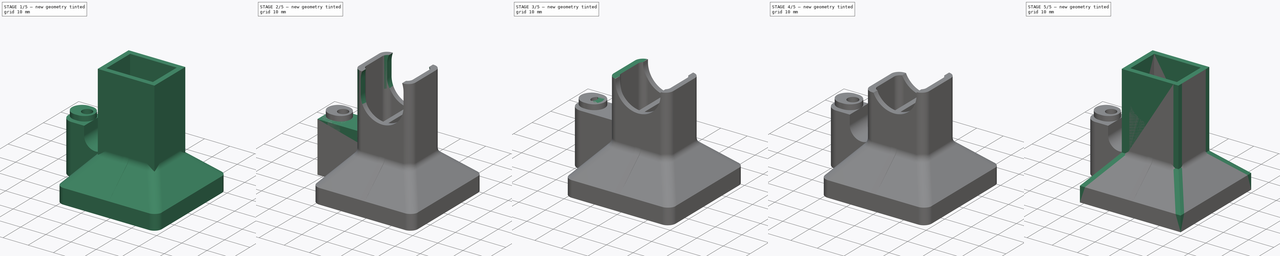
[diagram: build sequence overview — one tinted view per stage of 5, left to right]
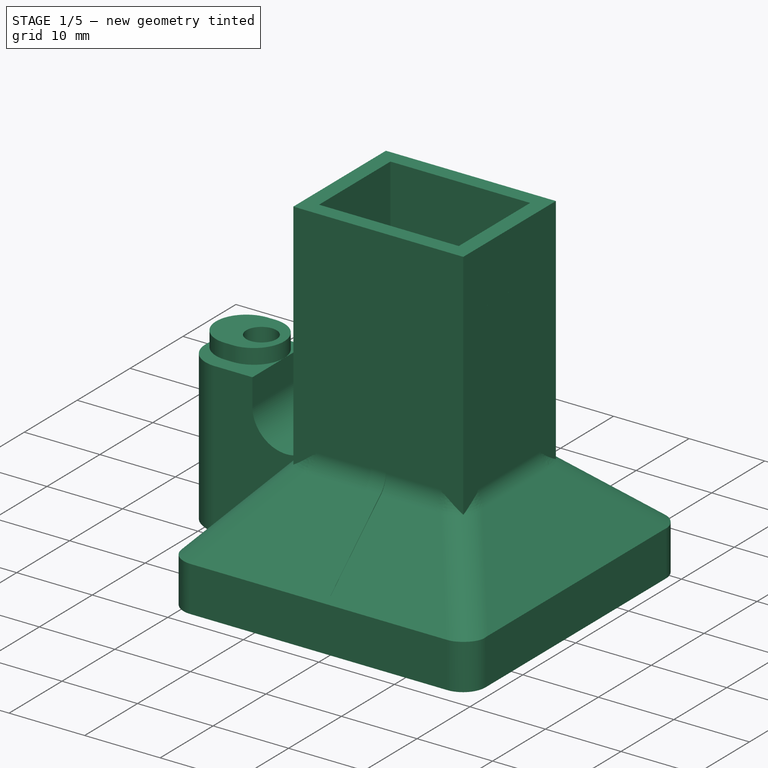
[diagram: stage 1 of 5 — iso view after this stage's code; geometry added in this stage tinted green]
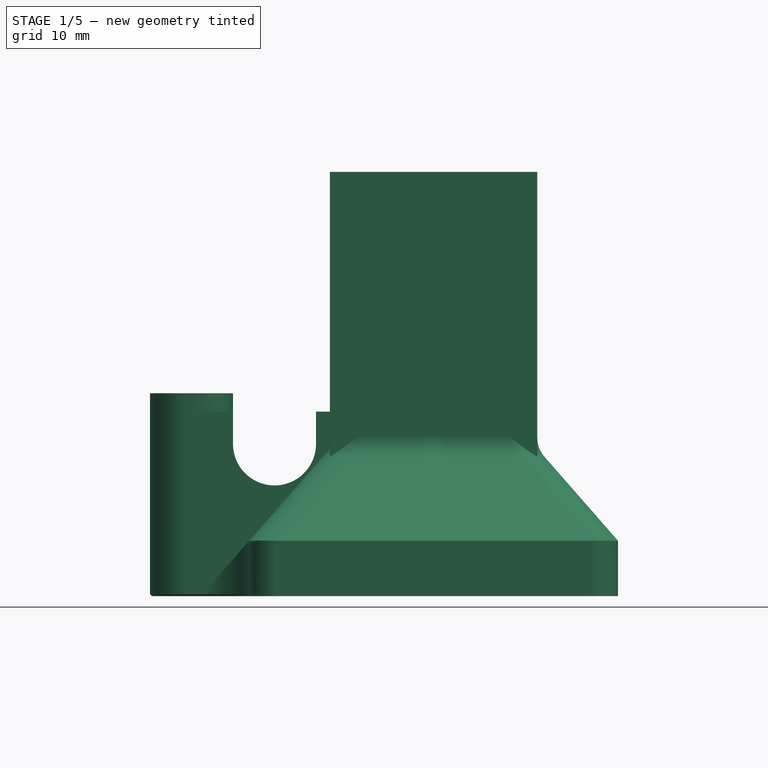
[diagram: stage 1 of 5 — front view after this stage's code; geometry added in this stage tinted green]
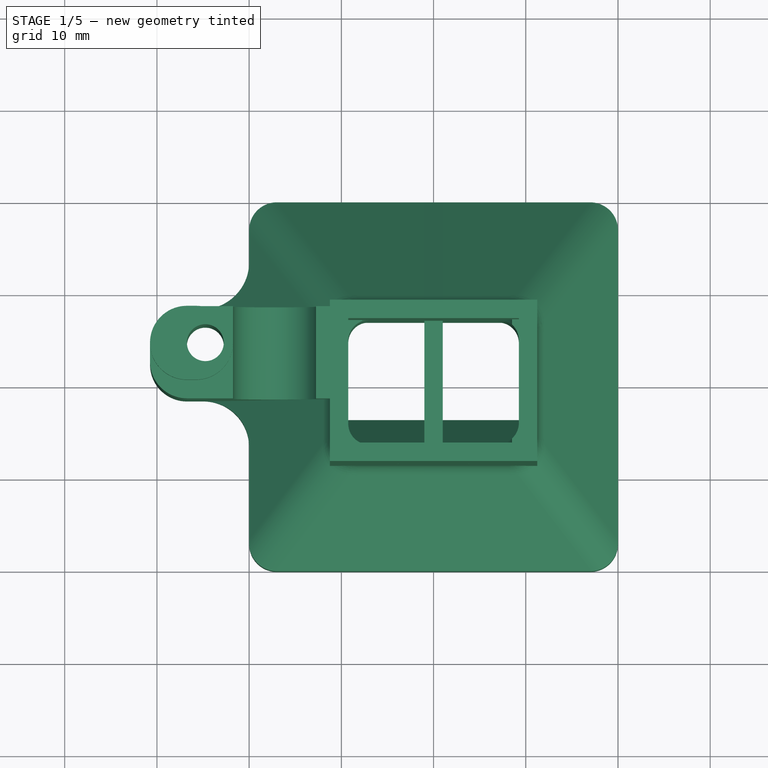
[diagram: stage 1 of 5 — top view after this stage's code; geometry added in this stage tinted green]
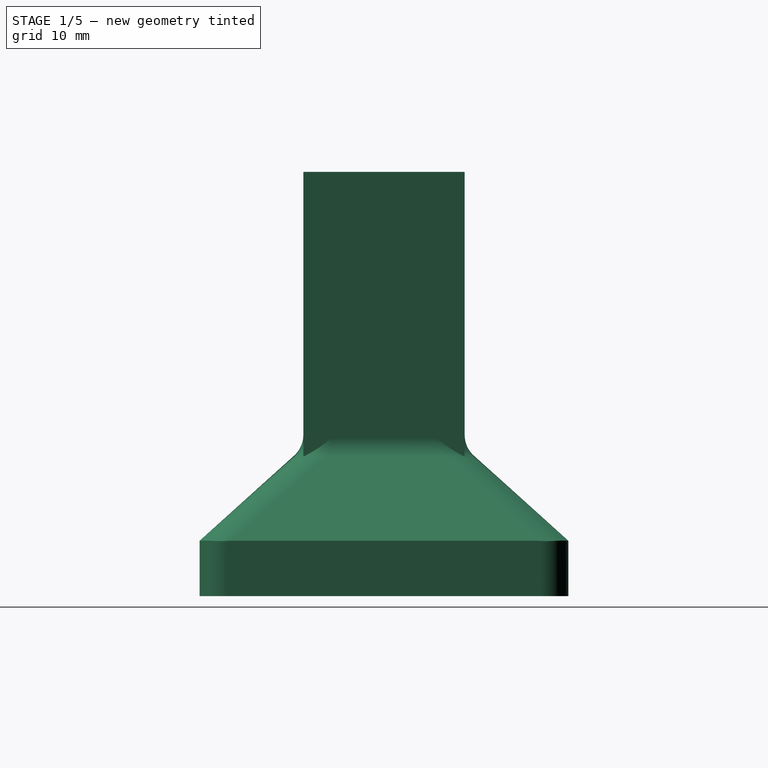
[diagram: stage 1 of 5 — right view after this stage's code; geometry added in this stage tinted green]
FCSTD DOCUMENT  (FreeCAD 0.16R5861 (Git))
Label: heatsink_fan_v0.6
License: All rights reserved
LicenseURL: http://en.wikipedia.org/wiki/All_rights_reserved
objects: Sketcher::SketchObject×19, PartDesign::Pocket×11, PartDesign::Fillet×10, PartDesign::Pad×8, PartDesign::Chamfer×5, Part::Feature×2
note: 74 computed .brp shape members not serialized (recipe doc carries the construction recipe); baked Part::Feature solids carry a one-line shape summary decoded from their .brp

FEATURE [Part::Feature] Pocket001001  label="Pocket002"
  shape: bbox 40 x 40 x 46 mm, 31 faces (baked)
FEATURE [PartDesign::Fillet] Fillet
  Base = -> Pocket001001 [Edge11,Edge10,Edge13,Edge15]
  Radius = 3
FEATURE [PartDesign::Fillet] Fillet001
  Base = -> Fillet [Edge52,Edge49,Edge47,Edge50]
  Radius = 4.5
FEATURE [Part::Feature] Pocket001010001  label="Pocket001011"
  shape: bbox 51.37 x 40.68 x 38.5 mm, 147 faces (baked)
FEATURE [PartDesign::Chamfer] Chamfer002
  Base = -> Pocket001010001 [Edge216,Edge194,Edge1,Edge327]
  Size = 0.5
FEATURE [PartDesign::Chamfer] Chamfer003
  Base = -> Chamfer002 [Edge41]
  Size = 0.5
FEATURE [PartDesign::Fillet] Fillet008
  Base = -> Chamfer003 [Edge143,Edge98,Edge101,Edge130]
  Radius = 4
FEATURE [PartDesign::Fillet] Fillet009
  Base = -> Fillet008 [Edge92,Edge71]
  Radius = 5
FEATURE [PartDesign::Chamfer] Chamfer004
  Base = -> Fillet009 [Edge7]
  Size = 0.2
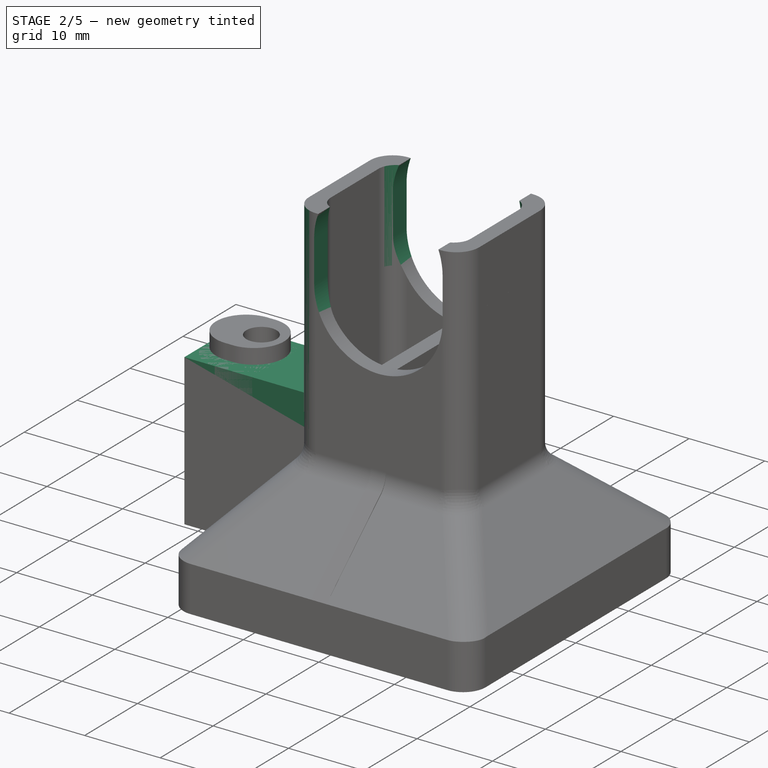
[diagram: stage 2 of 5 — iso view after this stage's code; geometry added in this stage tinted green]
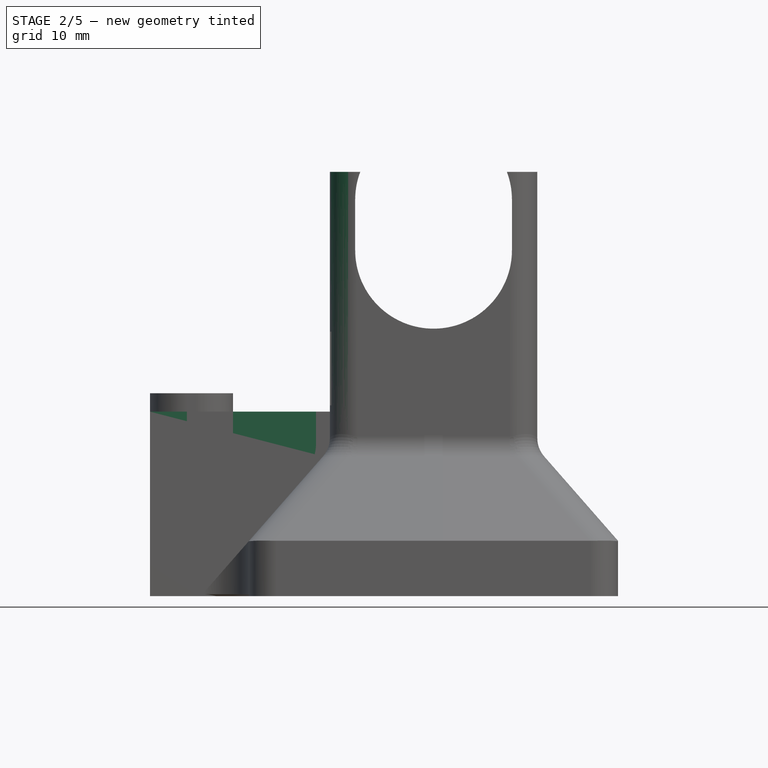
[diagram: stage 2 of 5 — front view after this stage's code; geometry added in this stage tinted green]
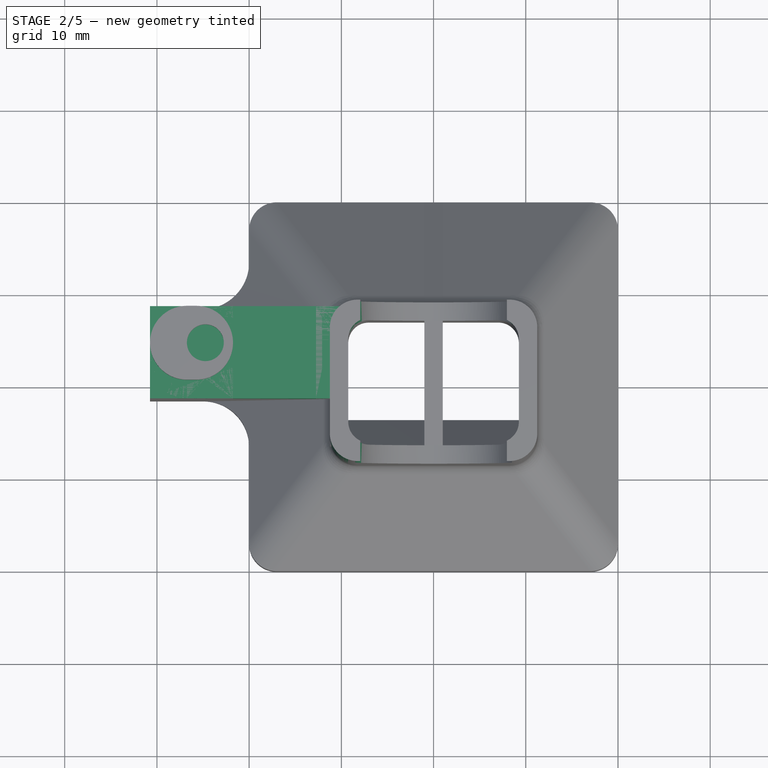
[diagram: stage 2 of 5 — top view after this stage's code; geometry added in this stage tinted green]
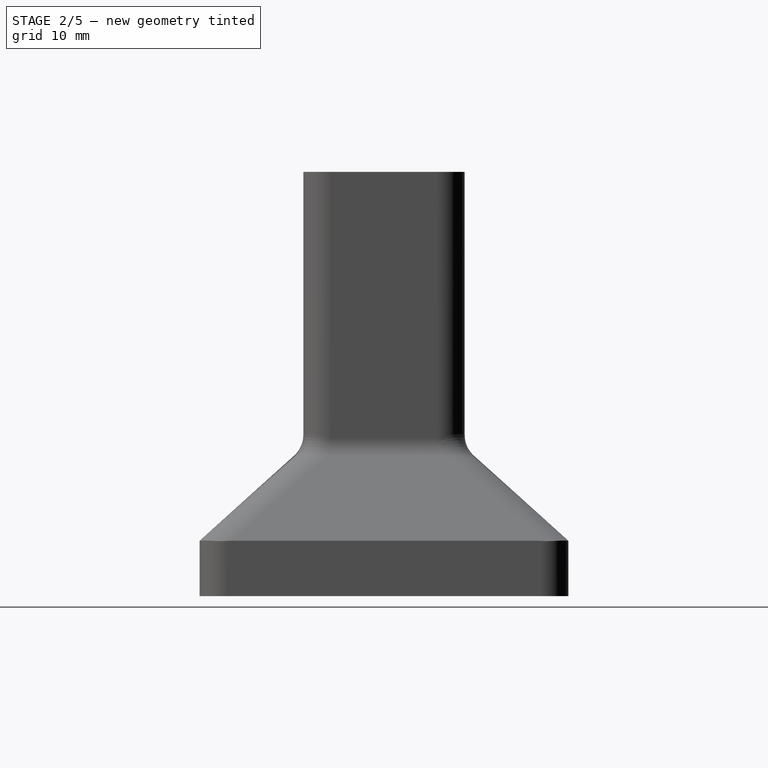
[diagram: stage 2 of 5 — right view after this stage's code; geometry added in this stage tinted green]
FEATURE [PartDesign::Fillet] Fillet002
  Base = -> Fillet001 [Edge70,Edge39,Edge40,Edge37]
  Radius = 3
FEATURE [PartDesign::Fillet] Fillet003
  Base = -> Fillet002 [Edge110,Edge103,Edge107,Edge104]
  Radius = 3
FEATURE [PartDesign::Fillet] Fillet004
  Base = -> Fillet003 [Edge5,Edge30,Edge10,Edge1]
  Radius = 2.25
FEATURE [PartDesign::Fillet] Fillet005
  Base = -> Fillet004 [Edge4]
  Radius = 4
FEATURE [Sketcher::SketchObject] Sketch005
  ExternalGeometry = -> [Fillet005]
  Support = -> Fillet005 [Face16]
  sketch-geometry (6):
    g0: ArcOfCircle CenterX=20 CenterY=43 CenterZ=0 NormalX=0 NormalY=0 NormalZ=1 Radius=8.5 StartAngle=0 EndAngle=3.14159
    g1: ArcOfCircle CenterX=20 CenterY=37.5 CenterZ=0 NormalX=0 NormalY=0 NormalZ=1 Radius=8.5 StartAngle=3.14159 EndAngle=6.28319
    g2: LineSegment StartX=11.5 StartY=43 StartZ=0 EndX=11.5 EndY=37.5 EndZ=0
    g3: LineSegment StartX=28.5 StartY=43 StartZ=0 EndX=28.5 EndY=37.5 EndZ=0
    g4: LineSegment [constr] StartX=11.75 StartY=46 StartZ=0 EndX=20 EndY=43 EndZ=0
    g5: LineSegment [constr] StartX=20 StartY=43 StartZ=0 EndX=28.25 EndY=46 EndZ=0
  constraints (14):
    c: Tangent(g0,g3) = 1.5708
    c: Tangent(g0,g2) = -1.5708
    c: Tangent(g2,g1) = -1.5708
    c: Tangent(g3,g1) = 1.5708
    c: Vertical(g2)
    c: Equal(g0,g1)
    c: Coincident(g-3,g4)
    c: Coincident(g4,g0)
    c: Coincident(g4,g5)
    c: Coincident(g5,g-3)
    c: Equal(g4,g5)
    c: DistanceX(g0,g0) = -17
    c: DistanceY(g1,g5) = 8.5
    c: DistanceY(g0,g4) = 3
FEATURE [PartDesign::Pocket] Pocket001002
  Length = 5
  Sketch = -> Sketch005
  Type = 1
FEATURE [PartDesign::Fillet] Fillet006
  Base = -> Pocket001002 [Edge88]
  Radius = 3
FEATURE [Sketcher::SketchObject] Sketch006
  ExternalGeometry = -> [Fillet006]
  Support = -> Fillet006 [Face45]
  sketch-geometry (4):
    g0: LineSegment StartX=-28.5 StartY=0 StartZ=0 EndX=-18.5 EndY=0 EndZ=0
    g1: LineSegment StartX=-18.5 StartY=0 StartZ=0 EndX=-18.5 EndY=20 EndZ=0
    g2: LineSegment StartX=-18.5 StartY=20 StartZ=0 EndX=-28.5 EndY=20 EndZ=0
    g3: LineSegment StartX=-28.5 StartY=20 StartZ=0 EndX=-28.5 EndY=0 EndZ=0
  constraints (12):
    c: Coincident(g0,g1)
    c: Coincident(g1,g2)
    c: Coincident(g2,g3)
    c: Coincident(g3,g0)
    c: Horizontal(g0)
    c: Horizontal(g2)
    c: Vertical(g1)
    c: Vertical(g3)
    c: PointOnObject(g0,g-1)
    c: DistanceX(g2) = -10
    c: DistanceY(g3) = -20
    c: DistanceX(g-1,g0) = -18.5
FEATURE [PartDesign::Pad] Pad003
  Length = 10.75
  Length2 = 10.75
  Reversed = true
  Sketch = -> Sketch006
  Type = 4
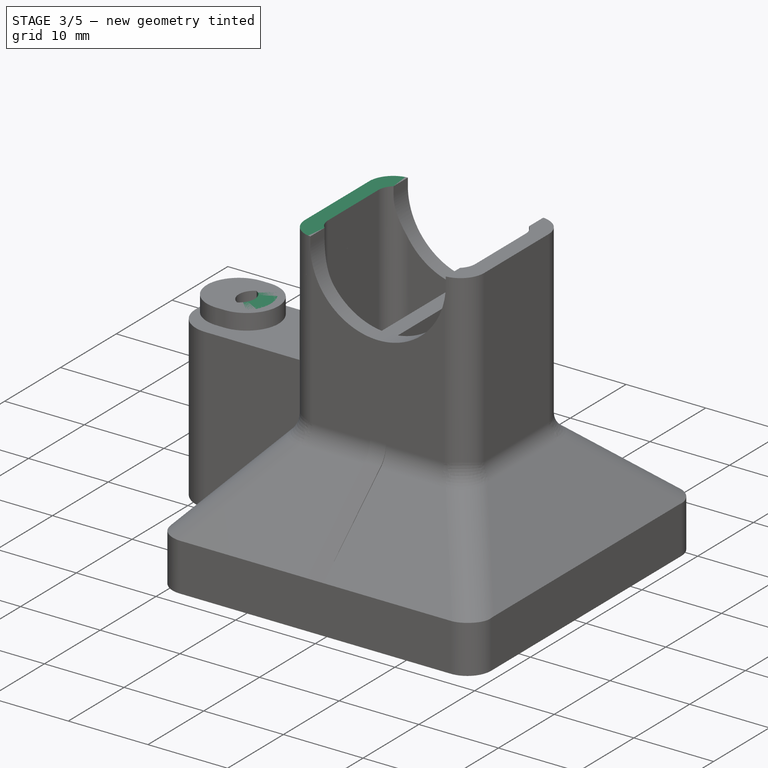
[diagram: stage 3 of 5 — iso view after this stage's code; geometry added in this stage tinted green]
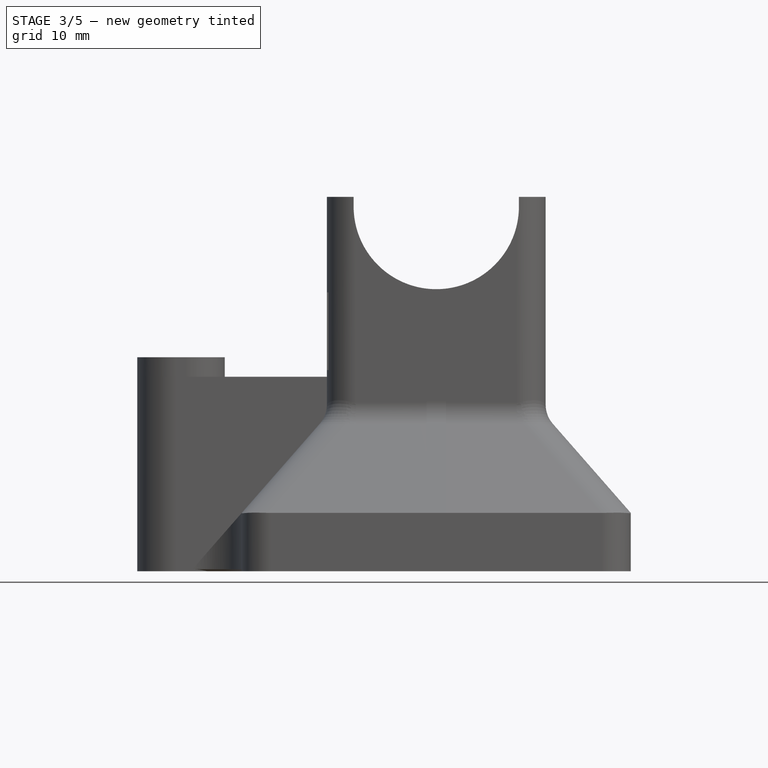
[diagram: stage 3 of 5 — front view after this stage's code; geometry added in this stage tinted green]
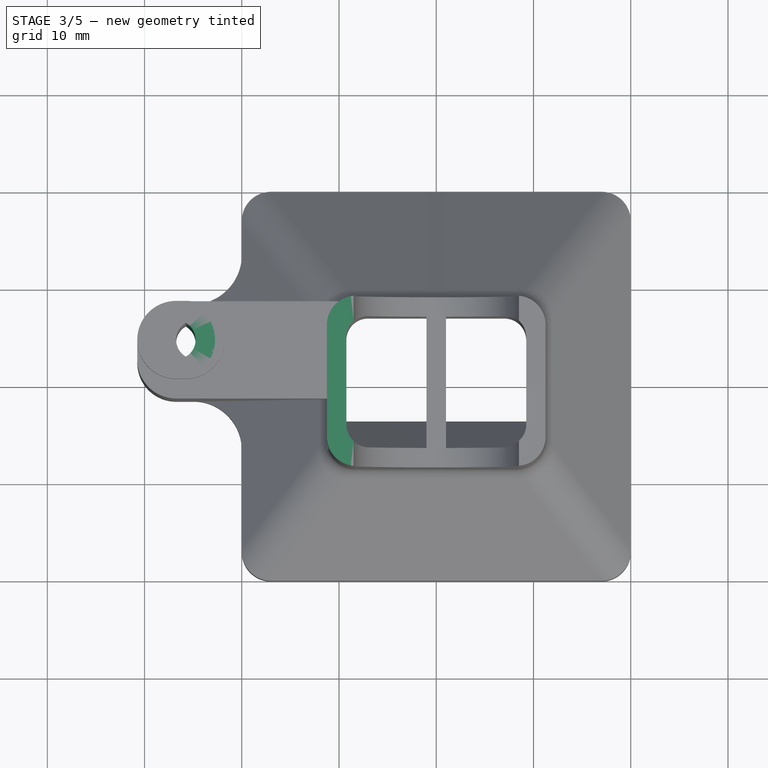
[diagram: stage 3 of 5 — top view after this stage's code; geometry added in this stage tinted green]
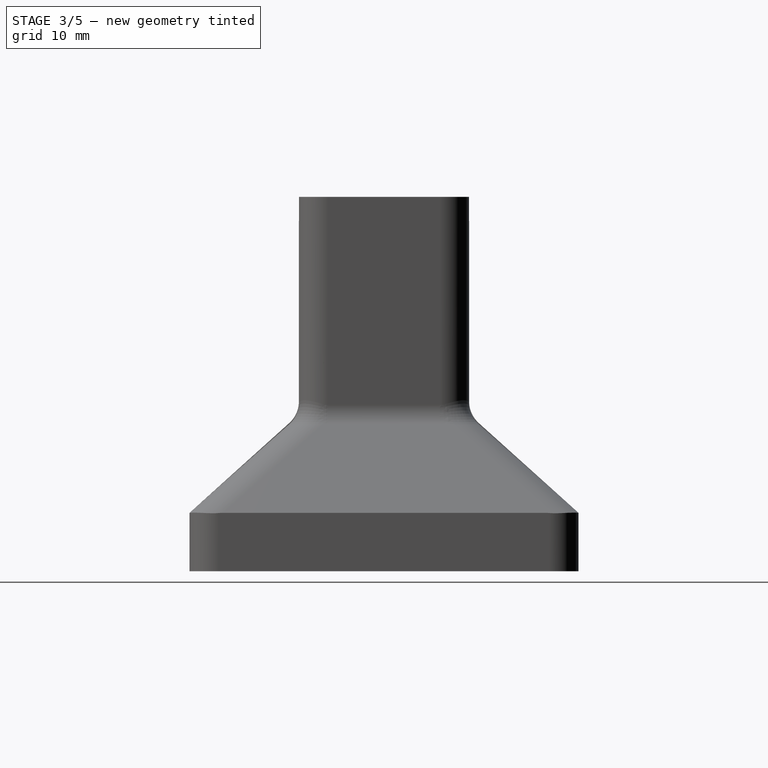
[diagram: stage 3 of 5 — right view after this stage's code; geometry added in this stage tinted green]
FEATURE [PartDesign::Chamfer] Chamfer
  Base = -> Pad003 [Edge67]
  Size = 6
FEATURE [PartDesign::Chamfer] Chamfer001
  Base = -> Chamfer [Edge12]
  Size = 6
FEATURE [Sketcher::SketchObject] Sketch007
  ExternalGeometry = -> [Chamfer001]
  Support = -> Chamfer001 [Face32]
  sketch-geometry (1):
    g0: Circle CenterX=-6.75 CenterY=-24.5 CenterZ=0 NormalX=0 NormalY=0 NormalZ=1 Radius=2
  constraints (3):
    c: Radius(g0) = 2
    c: DistanceX(g-3,g0) = 4
    c: DistanceY(g0,g-3) = -4
FEATURE [PartDesign::Pocket] Pocket001003
  Length = 5
  Sketch = -> Sketch007
  Type = 1
FEATURE [PartDesign::Fillet] Fillet007
  Base = -> Pocket001003 [Edge215,Edge210]
  Radius = 4
FEATURE [Sketcher::SketchObject] Sketch008
  ExternalGeometry = -> [Fillet007]
  Support = -> Fillet007 [Face10]
  sketch-geometry (2):
    g0: Circle CenterX=-6.75 CenterY=24.5 CenterZ=0 NormalX=0 NormalY=0 NormalZ=1 Radius=4
    g1: Circle CenterX=-6.75 CenterY=24.5 CenterZ=0 NormalX=0 NormalY=0 NormalZ=1 Radius=2
  constraints (4):
    c: Coincident(g0,g-3)
    c: Coincident(g1,g0)
    c: Equal(g-3,g1)
    c: Radius(g0) = 4
FEATURE [PartDesign::Pad] Pad004
  Length = 2
  Length2 = 100
  Sketch = -> Sketch008
  Type = 0
FEATURE [Sketcher::SketchObject] Sketch009
  ExternalGeometry = -> [Pad004]
  Support = -> Pad004 [Face34]
  sketch-geometry (4):
    g0: LineSegment StartX=3.75 StartY=46 StartZ=0 EndX=33.75 EndY=46 EndZ=0
    g1: LineSegment StartX=33.75 StartY=46 StartZ=0 EndX=33.75 EndY=38.5 EndZ=0
    g2: LineSegment StartX=33.75 StartY=38.5 StartZ=0 EndX=3.75 EndY=38.5 EndZ=0
    g3: LineSegment StartX=3.75 StartY=38.5 StartZ=0 EndX=3.75 EndY=46 EndZ=0
  constraints (12):
    c: Coincident(g0,g1)
    c: Coincident(g1,g2)
    c: Coincident(g2,g3)
    c: Coincident(g3,g0)
    c: Horizontal(g0)
    c: Horizontal(g2)
    c: Vertical(g1)
    c: Vertical(g3)
    c: PointOnObject(g-3,g0)
    c: DistanceX(g-3,g0) = -8
    c: DistanceX(g0) = 30
    c: DistanceY(g3) = 7.5
FEATURE [PartDesign::Pocket] Pocket001004
  Length = 5
  Sketch = -> Sketch009
  Type = 1
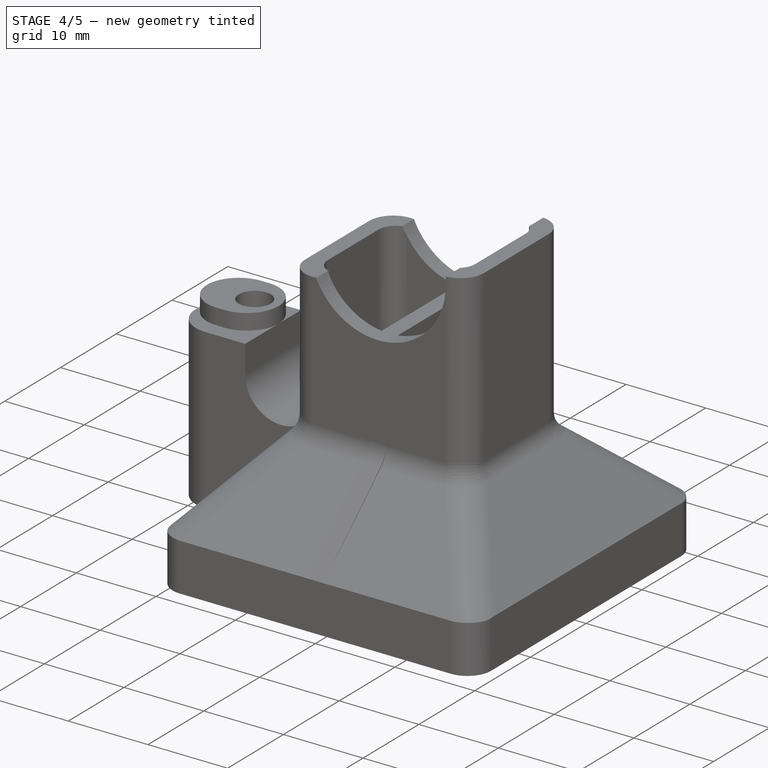
[diagram: stage 4 of 5 — iso view after this stage's code; geometry added in this stage tinted green]
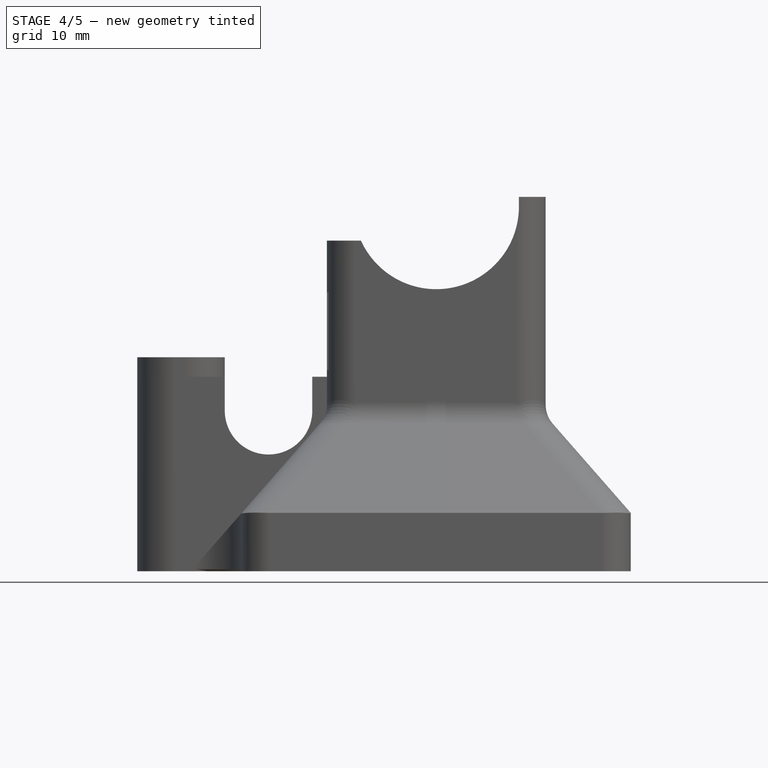
[diagram: stage 4 of 5 — front view after this stage's code; geometry added in this stage tinted green]
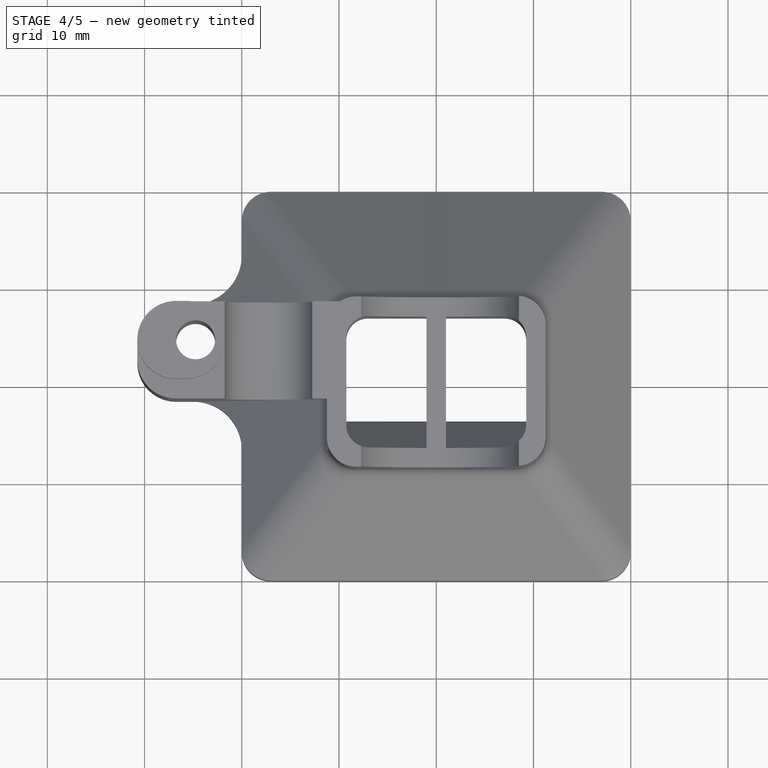
[diagram: stage 4 of 5 — top view after this stage's code; geometry added in this stage tinted green]
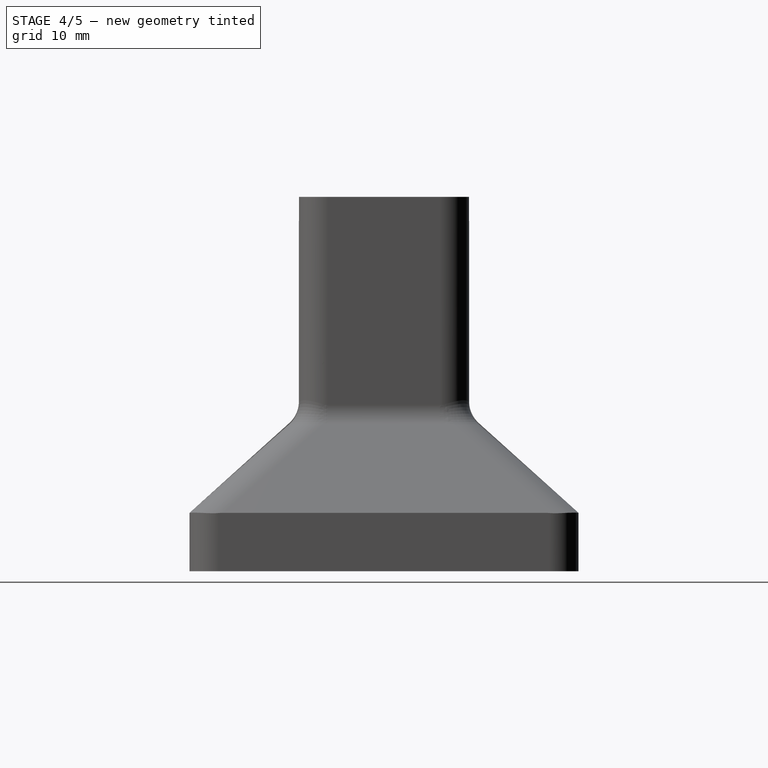
[diagram: stage 4 of 5 — right view after this stage's code; geometry added in this stage tinted green]
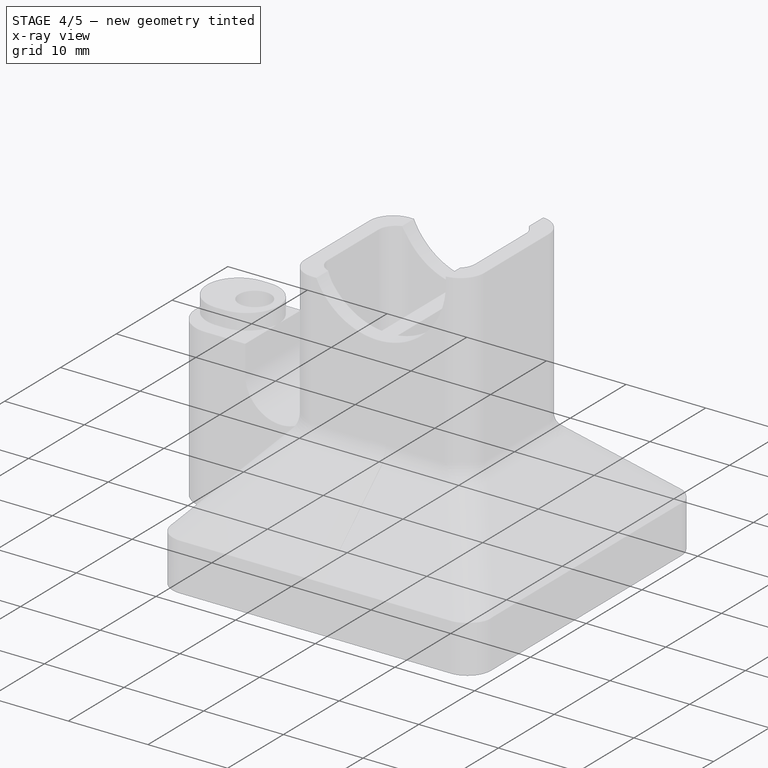
[diagram: stage 4 of 5 — x-ray composite at the iso view; earlier geometry ghosted, this stage's added geometry solid]
FEATURE [Sketcher::SketchObject] Sketch010
  ExternalGeometry = -> [Pocket001004]
  Support = -> Pocket001004 [Face7]
  sketch-geometry (4):
    g0: ArcOfCircle CenterX=2.75 CenterY=20 CenterZ=0 NormalX=0 NormalY=0 NormalZ=1 Radius=4.5 StartAngle=0 EndAngle=3.14159
    g1: ArcOfCircle CenterX=2.75 CenterY=16.5 CenterZ=0 NormalX=0 NormalY=0 NormalZ=1 Radius=4.5 StartAngle=3.14159 EndAngle=6.28319
    g2: LineSegment StartX=-1.75 StartY=20 StartZ=0 EndX=-1.75 EndY=16.5 EndZ=0
    g3: LineSegment StartX=7.25 StartY=20 StartZ=0 EndX=7.25 EndY=16.5 EndZ=0
  constraints (10):
    c: Tangent(g0,g3) = 1.5708
    c: Tangent(g0,g2) = -1.5708
    c: Tangent(g2,g1) = -1.5708
    c: Tangent(g3,g1) = 1.5708
    c: Vertical(g2)
    c: Equal(g0,g1)
    c: PointOnObject(g0,g-3)
    c: Radius(g0) = 4.5
    c: DistanceX(g0,g-3) = 6
    c: DistanceY(g1,g0) = 3.5
FEATURE [PartDesign::Pocket] Pocket001005
  Length = 5
  Sketch = -> Sketch010
  Type = 1
FEATURE [Sketcher::SketchObject] Sketch011
  Support = -> Pocket001005 [Face27]
  sketch-geometry (4):
    g0: LineSegment StartX=0 StartY=54 StartZ=0 EndX=-20 EndY=54 EndZ=0
    g1: LineSegment StartX=-20 StartY=54 StartZ=0 EndX=-20 EndY=34 EndZ=0
    g2: LineSegment StartX=-20 StartY=34 StartZ=0 EndX=0 EndY=34 EndZ=0
    g3: LineSegment StartX=0 StartY=34 StartZ=0 EndX=0 EndY=54 EndZ=0
  constraints (12):
    c: Coincident(g0,g1)
    c: Coincident(g1,g2)
    c: Coincident(g2,g3)
    c: Coincident(g3,g0)
    c: Horizontal(g0)
    c: Horizontal(g2)
    c: Vertical(g1)
    c: Vertical(g3)
    c: PointOnObject(g0,g-2)
    c: DistanceX(g2) = 20
    c: DistanceY(g-1,g2) = 34
    c: DistanceY(g3) = 20
FEATURE [PartDesign::Pocket] Pocket001006
  Length = 5
  Sketch = -> Sketch011
  Type = 1
FEATURE [Sketcher::SketchObject] Sketch012
  ExternalGeometry = -> [Pocket001006]
  Support = -> Pocket001006 [Face12]
  sketch-geometry (2):
    g0: Circle CenterX=-4.75 CenterY=-24.5 CenterZ=0 NormalX=0 NormalY=0 NormalZ=1 Radius=2
    g1: LineSegment [constr] StartX=-6.75 StartY=-24.5 StartZ=0 EndX=-4.75 EndY=-24.5 EndZ=0
  constraints (5):
    c: Coincident(g1,g-3)
    c: Coincident(g1,g0)
    c: Equal(g0,g-3)
    c: Horizontal(g1)
    c: DistanceX(g1) = 2
FEATURE [PartDesign::Pocket] Pocket001007
  Length = 5
  Sketch = -> Sketch012
  Type = 1
FEATURE [Sketcher::SketchObject] Sketch013
  ExternalGeometry = -> [Pocket001007]
  Support = -> Pocket001007 [Face1]
  sketch-geometry (4):
    g0: ArcOfCircle CenterX=-6.75 CenterY=24.5 CenterZ=0 NormalX=0 NormalY=0 NormalZ=1 Radius=4 StartAngle=1.5708 EndAngle=4.71239
    g1: ArcOfCircle CenterX=-5.75 CenterY=24.5 CenterZ=0 NormalX=0 NormalY=0 NormalZ=1 Radius=4 StartAngle=4.71239 EndAngle=7.85398
    g2: LineSegment StartX=-6.75 StartY=20.5 StartZ=0 EndX=-5.75 EndY=20.5 EndZ=0
    g3: LineSegment StartX=-6.75 StartY=28.5 StartZ=0 EndX=-5.75 EndY=28.5 EndZ=0
  constraints (9):
    c: Tangent(g0,g3) = 1.5708
    c: Tangent(g0,g2) = -1.5708
    c: Tangent(g2,g1) = -1.5708
    c: Tangent(g3,g1) = 1.5708
    c: Horizontal(g2)
    c: Equal(g0,g1)
    c: Coincident(g0,g-3)
    c: Equal(g-3,g0)
    c: DistanceX(g1,g0) = -1
FEATURE [PartDesign::Pad] Pad005
  Length = 22
  Length2 = 100
  Reversed = true
  Sketch = -> Sketch013
  Type = 0
FEATURE [Sketcher::SketchObject] Sketch015
  ExternalGeometry = -> [Pad005]
  Support = -> Pad005 [Face2]
  sketch-geometry (1):
    g0: Circle CenterX=-4.75 CenterY=-24.5 CenterZ=0 NormalX=0 NormalY=0 NormalZ=1 Radius=2
  constraints (2):
    c: Coincident(g0,g-3)
    c: PointOnObject(g-3,g0)
FEATURE [PartDesign::Pocket] Pocket001008
  Length = 5
  Sketch = -> Sketch015
  Type = 1
FEATURE [Sketcher::SketchObject] Sketch016
  ExternalGeometry = -> [Pocket001008]
  Support = -> Pocket001008 [Face16]
  sketch-geometry (3):
    g0: LineSegment StartX=-13.25 StartY=28.6782 StartZ=0 EndX=-16.0508 EndY=24.6782 EndZ=0
    g1: LineSegment StartX=-16.0508 StartY=24.6782 StartZ=0 EndX=-13.25 EndY=20.6782 EndZ=0
    g2: LineSegment StartX=-13.25 StartY=20.6782 StartZ=0 EndX=-13.25 EndY=28.6782 EndZ=0
  constraints (9):
    c: Coincident(g0,g1)
    c: PointOnObject(g1,g-4)
    c: Coincident(g1,g2)
    c: Coincident(g2,g0)
    c: Equal(g0,g1)
    c: DistanceY(g1,g0) = 8
    c: Angle(g-4,g1) = 0.610865
    c: PointOnObject(g0,g-4)
    c: DistanceY(g0,g-4) = 4
FEATURE [PartDesign::Pad] Pad006
  Length = 22
  Length2 = 100
  Reversed = true
  Sketch = -> Sketch016
  Type = 0
FEATURE [Sketcher::SketchObject] Sketch017
  ExternalGeometry = -> [Pad006]
  Support = -> Pad006 [Face21]
  sketch-geometry (8):
    g0: Circle CenterX=4 CenterY=-4 CenterZ=0 NormalX=0 NormalY=0 NormalZ=1 Radius=2.75
    g1: Circle CenterX=36 CenterY=-4 CenterZ=0 NormalX=0 NormalY=0 NormalZ=1 Radius=2.75
    g2: Circle CenterX=36 CenterY=-36 CenterZ=0 NormalX=0 NormalY=0 NormalZ=1 Radius=2.75
    g3: LineSegment [constr] StartX=36 StartY=-4 StartZ=0 EndX=4 EndY=-4 EndZ=0
    g4: LineSegment [constr] StartX=4 StartY=-4 StartZ=0 EndX=4 EndY=-36 EndZ=0
    g5: LineSegment [constr] StartX=4 StartY=-36 StartZ=0 EndX=36 EndY=-36 EndZ=0
    g6: LineSegment [constr] StartX=36 StartY=-36 StartZ=0 EndX=36 EndY=-4 EndZ=0
    g7: Circle CenterX=4 CenterY=-36 CenterZ=0 NormalX=0 NormalY=0 NormalZ=1 Radius=2.75
  constraints (19):
    c: Coincident(g0,g-4)
    c: Coincident(g1,g-5)
    c: Coincident(g2,g-6)
    c: Coincident(g3,g4)
    c: Coincident(g4,g5)
    c: Coincident(g5,g6)
    c: Coincident(g6,g3)
    c: Horizontal(g3)
    c: Horizontal(g5)
    c: Vertical(g4)
    c: Vertical(g6)
    c: Coincident(g3,g1)
    c: Coincident(g5,g2)
    c: Coincident(g0,g3)
    c: Coincident(g7,g4)
    c: Equal(g7,g0)
    c: Equal(g0,g1)
    c: Equal(g1,g2)
    c: Radius(g0) = 2.75
FEATURE [PartDesign::Pocket] Pocket001009
  Length = 6
  Sketch = -> Sketch017
  Type = 0
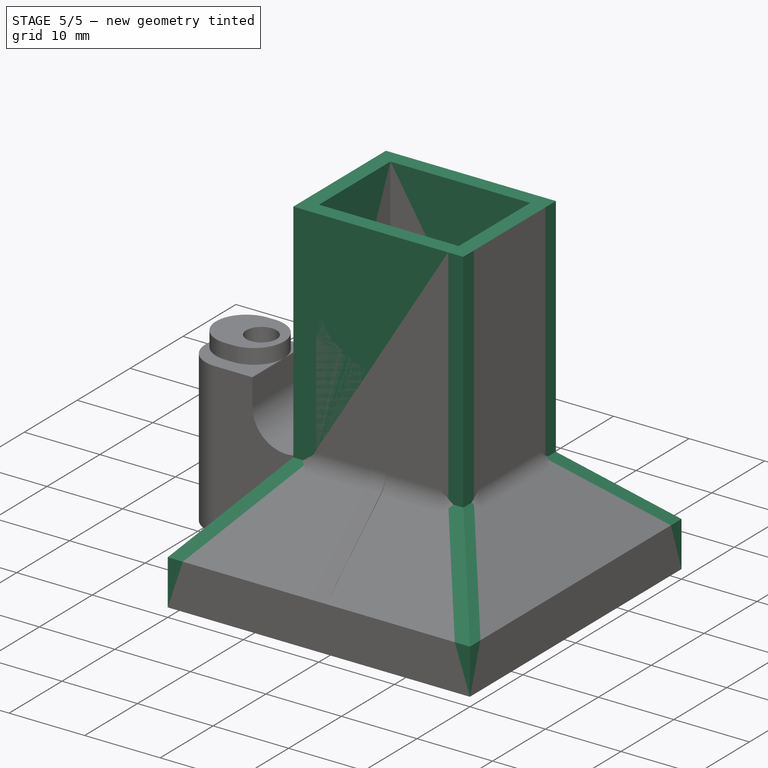
[diagram: stage 5 of 5 — iso view after this stage's code; geometry added in this stage tinted green]
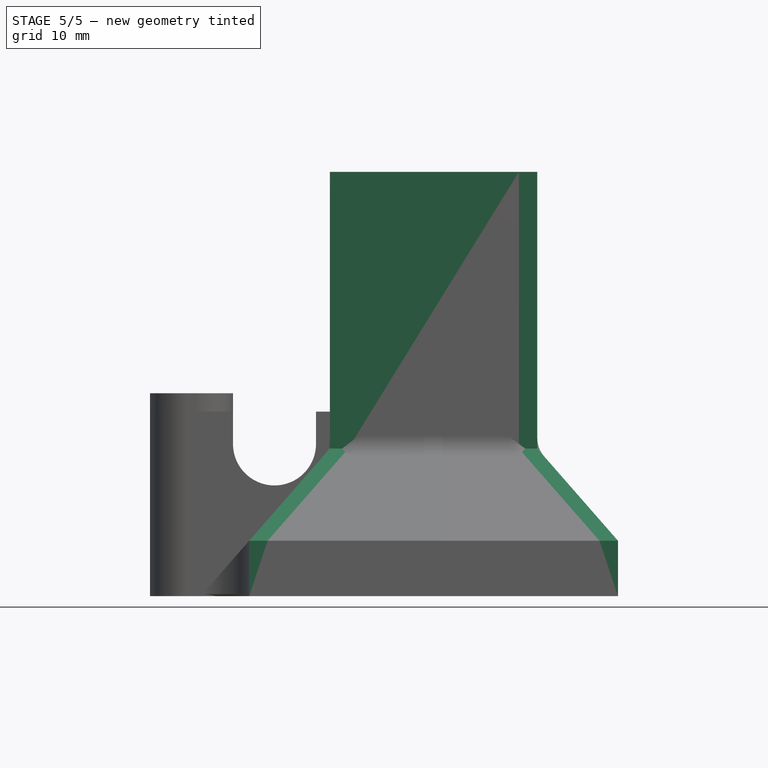
[diagram: stage 5 of 5 — front view after this stage's code; geometry added in this stage tinted green]
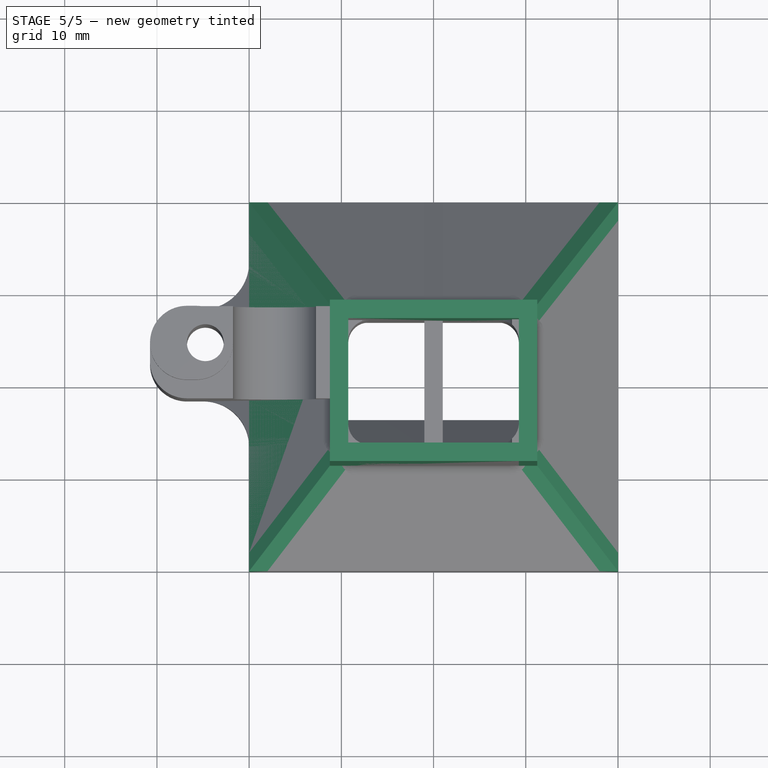
[diagram: stage 5 of 5 — top view after this stage's code; geometry added in this stage tinted green]
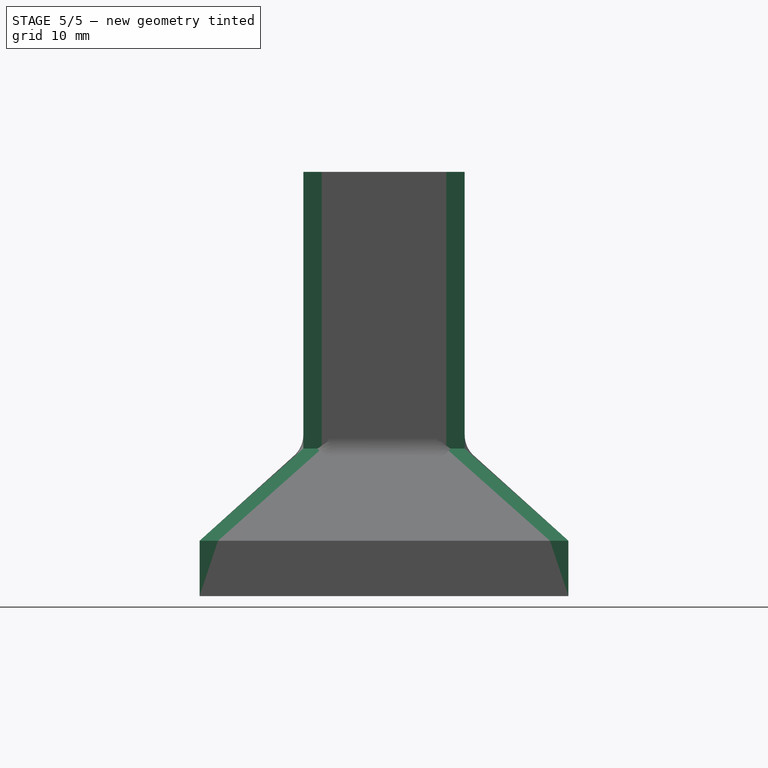
[diagram: stage 5 of 5 — right view after this stage's code; geometry added in this stage tinted green]
FEATURE [Sketcher::SketchObject] Sketch
  sketch-geometry (15):
    g0: LineSegment StartX=0 StartY=0 StartZ=0 EndX=40 EndY=0 EndZ=0
    g1: LineSegment StartX=40 StartY=0 StartZ=0 EndX=40 EndY=40 EndZ=0
    g2: LineSegment StartX=40 StartY=40 StartZ=0 EndX=0 EndY=40 EndZ=0
    g3: LineSegment StartX=0 StartY=40 StartZ=0 EndX=0 EndY=0 EndZ=0
    g4: LineSegment [constr] StartX=4 StartY=4 StartZ=0 EndX=36 EndY=4 EndZ=0
    g5: LineSegment [constr] StartX=36 StartY=4 StartZ=0 EndX=36 EndY=36 EndZ=0
    g6: LineSegment [constr] StartX=36 StartY=36 StartZ=0 EndX=4 EndY=36 EndZ=0
    g7: LineSegment [constr] StartX=4 StartY=36 StartZ=0 EndX=4 EndY=4 EndZ=0
    g8: Circle CenterX=4 CenterY=36 CenterZ=0 NormalX=0 NormalY=0 NormalZ=1 Radius=1.5
    g9: Circle CenterX=36 CenterY=36 CenterZ=0 NormalX=0 NormalY=0 NormalZ=1 Radius=1.5
    g10: Circle CenterX=36 CenterY=4 CenterZ=0 NormalX=0 NormalY=0 NormalZ=1 Radius=1.5
    g11: Circle CenterX=4 CenterY=4 CenterZ=0 NormalX=0 NormalY=0 NormalZ=1 Radius=1.5
    g12: LineSegment [constr] StartX=4 StartY=4 StartZ=0 EndX=20 EndY=20 EndZ=0
    g13: LineSegment [constr] StartX=20 StartY=20 StartZ=0 EndX=36 EndY=36 EndZ=0
    g14: Circle CenterX=20 CenterY=20 CenterZ=0 NormalX=0 NormalY=0 NormalZ=1 Radius=18
  constraints (38):
    c: Coincident(g0,g1)
    c: Coincident(g1,g2)
    c: Coincident(g2,g3)
    c: Coincident(g3,g0)
    c: Horizontal(g0)
    c: Horizontal(g2)
    c: Vertical(g1)
    c: Vertical(g3)
    c: Coincident(g0,g-1)
    c: Equal(g3,g2)
    c: DistanceX(g2) = -40
    c: Coincident(g4,g5)
    c: Coincident(g5,g6)
    c: Coincident(g6,g7)
    c: Coincident(g7,g4)
    c: Horizontal(g4)
    c: Horizontal(g6)
    c: Vertical(g5)
    c: Vertical(g7)
    c: Equal(g6,g7)
    c: DistanceX(g6) = -32
    c: DistanceX(g4) = 4
    c: DistanceY(g4) = 4
    c: Coincident(g8,g6)
    c: Coincident(g9,g5)
    c: Coincident(g10,g4)
    c: Coincident(g11,g4)
    c: Equal(g11,g8)
    c: Equal(g8,g9)
    c: Equal(g9,g10)
    c: Radius(g9) = 1.5
    c: Coincident(g4,g12)
    c: Coincident(g12,g13)
    c: Coincident(g13,g5)
    c: PointOnObject(g4,g13)
    c: Equal(g12,g13)
    c: Coincident(g14,g12)
    c: Radius(g14) = 18
FEATURE [PartDesign::Pad] Pad
  Length = 6
  Length2 = 100
  Sketch = -> Sketch
  Type = 0
FEATURE [Sketcher::SketchObject] Sketch001
  ExternalGeometry = -> [Pad]
  Support = -> Pad [Face1]
  sketch-geometry (14):
    g0: LineSegment StartX=0 StartY=6 StartZ=0 EndX=2 EndY=6 EndZ=0
    g1: LineSegment StartX=2 StartY=6 StartZ=0 EndX=10.75 EndY=16 EndZ=0
    g2: LineSegment [constr] StartX=10.75 StartY=16 StartZ=0 EndX=8.75 EndY=16 EndZ=0
    g3: LineSegment StartX=8.75 StartY=16 StartZ=0 EndX=0 EndY=6 EndZ=0
    g4: LineSegment StartX=40 StartY=6 StartZ=0 EndX=38 EndY=6 EndZ=0
    g5: LineSegment StartX=38 StartY=6 StartZ=0 EndX=29.25 EndY=16 EndZ=0
    g6: LineSegment [constr] StartX=29.25 StartY=16 StartZ=0 EndX=31.25 EndY=16 EndZ=0
    g7: LineSegment StartX=31.25 StartY=16 StartZ=0 EndX=40 EndY=6 EndZ=0
    g8: LineSegment StartX=8.75 StartY=16 StartZ=0 EndX=8.75 EndY=46 EndZ=0
    g9: LineSegment StartX=8.75 StartY=46 StartZ=0 EndX=10.75 EndY=46 EndZ=0
    g10: LineSegment StartX=10.75 StartY=46 StartZ=0 EndX=10.75 EndY=16 EndZ=0
    g11: LineSegment StartX=29.25 StartY=16 StartZ=0 EndX=29.25 EndY=46 EndZ=0
    g12: LineSegment StartX=29.25 StartY=46 StartZ=0 EndX=31.25 EndY=46 EndZ=0
    g13: LineSegment StartX=31.25 StartY=46 StartZ=0 EndX=31.25 EndY=16 EndZ=0
  constraints (38):
    c: Coincident(g0,g1)
    c: Coincident(g1,g2)
    c: Coincident(g2,g3)
    c: Coincident(g3,g0)
    c: Horizontal(g0)
    c: Horizontal(g2)
    c: Coincident(g0,g-3)
    c: Coincident(g4,g5)
    c: Coincident(g5,g6)
    c: Coincident(g6,g7)
    c: Coincident(g7,g4)
    c: Horizontal(g4)
    c: Horizontal(g6)
    c: Coincident(g4,g-3)
    c: Equal(g2,g6)
    c: Equal(g7,g3)
    c: Parallel(g1,g3)
    c: Parallel(g5,g7)
    c: DistanceX(g6) = 2
    c: DistanceX(g6,g2) = -22.5
    c: PointOnObject(g5,g2)
    c: DistanceY(g2,g0) = -10
    c: Coincident(g2,g8)
    c: Vertical(g8)
    c: Coincident(g8,g9)
    c: Horizontal(g9)
    c: Coincident(g9,g10)
    c: Coincident(g10,g1)
    c: Vertical(g10)
    c: Coincident(g5,g11)
    c: Vertical(g11)
    c: Coincident(g11,g12)
    c: Horizontal(g12)
    c: Coincident(g12,g13)
    c: Coincident(g13,g6)
    c: Vertical(g13)
    c: PointOnObject(g9,g12)
    c: DistanceY(g8) = 30
FEATURE [PartDesign::Pad] Pad001
  Length = 40
  Length2 = 100
  Reversed = true
  Sketch = -> Sketch001
  Type = 0
FEATURE [Sketcher::SketchObject] Sketch002
  ExternalGeometry = -> [Pad001]
  Support = -> Pad001 [Face5]
  sketch-geometry (14):
    g0: LineSegment StartX=-40 StartY=6 StartZ=0 EndX=-38 EndY=6 EndZ=0
    g1: LineSegment StartX=-38 StartY=6 StartZ=0 EndX=-26.75 EndY=16 EndZ=0
    g2: LineSegment [constr] StartX=-26.75 StartY=16 StartZ=0 EndX=-28.75 EndY=16 EndZ=0
    g3: LineSegment StartX=-28.75 StartY=16 StartZ=0 EndX=-40 EndY=6 EndZ=0
    g4: LineSegment StartX=0 StartY=6 StartZ=0 EndX=-2 EndY=6 EndZ=0
    g5: LineSegment StartX=-2 StartY=6 StartZ=0 EndX=-13.25 EndY=16 EndZ=0
    g6: LineSegment [constr] StartX=-13.25 StartY=16 StartZ=0 EndX=-11.25 EndY=16 EndZ=0
    g7: LineSegment StartX=-11.25 StartY=16 StartZ=0 EndX=0 EndY=6 EndZ=0
    g8: LineSegment StartX=-28.75 StartY=16 StartZ=0 EndX=-28.75 EndY=46 EndZ=0
    g9: LineSegment StartX=-28.75 StartY=46 StartZ=0 EndX=-26.75 EndY=46 EndZ=0
    g10: LineSegment StartX=-26.75 StartY=46 StartZ=0 EndX=-26.75 EndY=16 EndZ=0
    g11: LineSegment StartX=-13.25 StartY=16 StartZ=0 EndX=-13.25 EndY=46 EndZ=0
    g12: LineSegment StartX=-13.25 StartY=46 StartZ=0 EndX=-11.25 EndY=46 EndZ=0
    g13: LineSegment StartX=-11.25 StartY=46 StartZ=0 EndX=-11.25 EndY=16 EndZ=0
  constraints (38):
    c: Coincident(g0,g1)
    c: Coincident(g1,g2)
    c: Coincident(g2,g3)
    c: Coincident(g3,g0)
    c: Horizontal(g0)
    c: Horizontal(g2)
    c: Coincident(g0,g-3)
    c: Coincident(g4,g5)
    c: Coincident(g5,g6)
    c: Coincident(g6,g7)
    c: Coincident(g7,g4)
    c: Horizontal(g4)
    c: Horizontal(g6)
    c: Coincident(g4,g-3)
    c: Equal(g2,g6)
    c: Equal(g3,g7)
    c: DistanceY(g2,g0) = -10
    c: Parallel(g5,g7)
    c: Parallel(g1,g3)
    c: DistanceX(g6) = 2
    c: DistanceX(g2,g6) = 17.5
    c: PointOnObject(g5,g2)
    c: Coincident(g2,g8)
    c: Vertical(g8)
    c: Coincident(g8,g9)
    c: Horizontal(g9)
    c: Coincident(g9,g10)
    c: Coincident(g10,g1)
    c: Vertical(g10)
    c: Coincident(g5,g11)
    c: Vertical(g11)
    c: Coincident(g11,g12)
    c: Horizontal(g12)
    c: Coincident(g12,g13)
    c: Coincident(g13,g6)
    c: Vertical(g13)
    c: PointOnObject(g9,g12)
    c: DistanceY(g8) = 30
FEATURE [PartDesign::Pad] Pad002
  Length = 40
  Length2 = 100
  Reversed = true
  Sketch = -> Sketch002
  Type = 0
FEATURE [Sketcher::SketchObject] Sketch003
  ExternalGeometry = -> [Pad002]
  Support = -> Pad002 [Face22]
  sketch-geometry (8):
    g0: LineSegment StartX=0 StartY=46 StartZ=0 EndX=-11.25 EndY=46 EndZ=0
    g1: LineSegment StartX=-11.25 StartY=46 StartZ=0 EndX=-11.25 EndY=16 EndZ=0
    g2: LineSegment StartX=-11.25 StartY=16 StartZ=0 EndX=0 EndY=6 EndZ=0
    g3: LineSegment StartX=0 StartY=6 StartZ=0 EndX=0 EndY=46 EndZ=0
    g4: LineSegment StartX=-40 StartY=46 StartZ=0 EndX=-28.75 EndY=46 EndZ=0
    g5: LineSegment StartX=-28.75 StartY=46 StartZ=0 EndX=-28.75 EndY=16 EndZ=0
    g6: LineSegment StartX=-28.75 StartY=16 StartZ=0 EndX=-40 EndY=6 EndZ=0
    g7: LineSegment StartX=-40 StartY=6 StartZ=0 EndX=-40 EndY=46 EndZ=0
  constraints (20):
    c: Coincident(g0,g1)
    c: Coincident(g1,g2)
    c: Coincident(g2,g3)
    c: Coincident(g3,g0)
    c: Horizontal(g0)
    c: Vertical(g1)
    c: Vertical(g3)
    c: Coincident(g0,g-8)
    c: Coincident(g1,g-6)
    c: Coincident(g4,g5)
    c: Coincident(g5,g6)
    c: Coincident(g6,g7)
    c: Coincident(g7,g4)
    c: Horizontal(g4)
    c: Vertical(g5)
    c: Vertical(g7)
    c: Coincident(g4,g-7)
    c: Coincident(g5,g-4)
    c: Coincident(g2,g-5)
    c: Coincident(g6,g-4)
FEATURE [PartDesign::Pocket] Pocket
  Length = 5
  Sketch = -> Sketch003
  Type = 1
FEATURE [Sketcher::SketchObject] Sketch004
  ExternalGeometry = -> [Pocket]
  Support = -> Pocket [Face4]
  sketch-geometry (8):
    g0: LineSegment StartX=-40 StartY=46 StartZ=0 EndX=-31.25 EndY=46 EndZ=0
    g1: LineSegment StartX=-31.25 StartY=46 StartZ=0 EndX=-31.25 EndY=16 EndZ=0
    g2: LineSegment StartX=-31.25 StartY=16 StartZ=0 EndX=-40 EndY=6 EndZ=0
    g3: LineSegment StartX=-40 StartY=6 StartZ=0 EndX=-40 EndY=46 EndZ=0
    g4: LineSegment StartX=0 StartY=46 StartZ=0 EndX=-8.75 EndY=46 EndZ=0
    g5: LineSegment StartX=-8.75 StartY=46 StartZ=0 EndX=-8.75 EndY=16 EndZ=0
    g6: LineSegment StartX=-8.75 StartY=16 StartZ=0 EndX=0 EndY=6 EndZ=0
    g7: LineSegment StartX=0 StartY=6 StartZ=0 EndX=0 EndY=46 EndZ=0
  constraints (20):
    c: Coincident(g0,g1)
    c: Coincident(g1,g2)
    c: Coincident(g2,g3)
    c: Coincident(g3,g0)
    c: Horizontal(g0)
    c: Vertical(g1)
    c: Vertical(g3)
    c: Coincident(g0,g-3)
    c: Coincident(g1,g-5)
    c: Coincident(g4,g5)
    c: Coincident(g5,g6)
    c: Coincident(g6,g7)
    c: Coincident(g7,g4)
    c: Horizontal(g4)
    c: Vertical(g5)
    c: Vertical(g7)
    c: Coincident(g4,g-7)
    c: Coincident(g5,g-6)
    c: Coincident(g-4,g2)
    c: Coincident(g6,g-8)
FEATURE [PartDesign::Pocket] Pocket001
  Length = 5
  Sketch = -> Sketch004
  Type = 1
FEATURE [Sketcher::SketchObject] Sketch018
  ExternalGeometry = -> [Pocket001009]
  Support = -> Pocket001009 [Face21]
  sketch-geometry (4):
    g0: LineSegment StartX=21 StartY=0 StartZ=0 EndX=19 EndY=0 EndZ=0
    g1: LineSegment StartX=19 StartY=0 StartZ=0 EndX=19 EndY=-40 EndZ=0
    g2: LineSegment StartX=19 StartY=-40 StartZ=0 EndX=21 EndY=-40 EndZ=0
    g3: LineSegment StartX=21 StartY=-40 StartZ=0 EndX=21 EndY=0 EndZ=0
  constraints (12):
    c: Coincident(g0,g1)
    c: Coincident(g1,g2)
    c: Coincident(g2,g3)
    c: Coincident(g3,g0)
    c: Horizontal(g0)
    c: Horizontal(g2)
    c: Vertical(g1)
    c: Vertical(g3)
    c: PointOnObject(g0,g-1)
    c: DistanceY(g3) = 40
    c: DistanceX(g0,g-3) = -1
    c: DistanceX(g0,g0) = 2
FEATURE [PartDesign::Pad] Pad007
  Length = 29
  Length2 = 100
  Reversed = true
  Sketch = -> Sketch018
  Type = 0
FEATURE [Sketcher::SketchObject] Sketch019
  ExternalGeometry = -> [Pad007]
  Support = -> Pad007 [Face108]
  sketch-geometry (10):
    g0: LineSegment StartX=0 StartY=31 StartZ=0 EndX=11.25 EndY=31 EndZ=0
    g1: LineSegment StartX=11.25 StartY=31 StartZ=0 EndX=11.25 EndY=17.4652 EndZ=0
    g2: LineSegment StartX=10.2574 StartY=15.2358 StartZ=0 EndX=0 EndY=6 EndZ=0
    g3: LineSegment StartX=0 StartY=6 StartZ=0 EndX=0 EndY=31 EndZ=0
    g4: LineSegment StartX=40 StartY=6 StartZ=0 EndX=40 EndY=31 EndZ=0
    g5: LineSegment StartX=40 StartY=31 StartZ=0 EndX=28.75 EndY=31 EndZ=0
    g6: LineSegment StartX=28.75 StartY=31 StartZ=0 EndX=28.75 EndY=17.4652 EndZ=0
    g7: LineSegment StartX=29.7426 StartY=15.2358 StartZ=0 EndX=40 EndY=6 EndZ=0
    g8: ArcOfCircle CenterX=8.25 CenterY=17.4652 CenterZ=0 NormalX=0 NormalY=0 NormalZ=1 Radius=3 StartAngle=5.44543 EndAngle=6.28319
    g9: ArcOfCircle CenterX=31.75 CenterY=17.4652 CenterZ=0 NormalX=0 NormalY=0 NormalZ=1 Radius=3 StartAngle=3.14159 EndAngle=3.97935
  constraints (28):
    c: PointOnObject(g0,g-2)
    c: Horizontal(g0)
    c: Coincident(g0,g1)
    c: Vertical(g1)
    c: PointOnObject(g2,g-2)
    c: Coincident(g2,g3)
    c: Coincident(g3,g0)
    c: Vertical(g4)
    c: Coincident(g4,g5)
    c: PointOnObject(g5,g-4)
    c: Coincident(g5,g6)
    c: Vertical(g6)
    c: Coincident(g7,g4)
    c: Angle(g2,g3) = 0.837758
    c: Angle(g4,g7) = 0.837758
    c: Horizontal(g5)
    c: PointOnObject(g0,g5)
    c: DistanceY(g-1,g2) = 6
    c: DistanceX(g0) = 11.25
    c: Equal(g5,g0)
    c: DistanceY(g-1,g4) = 6
    c: DistanceY(g4) = 25
    c: Tangent(g1,g8) = 1.5708
    c: Tangent(g2,g8) = 1.5708
    c: Tangent(g6,g9) = -1.5708
    c: Tangent(g7,g9) = -1.5708
    c: Radius(g8) = 3
    c: Radius(g9) = 3
FEATURE [PartDesign::Pocket] Pocket001010
  Length = 5
  Sketch = -> Sketch019
  Type = 1
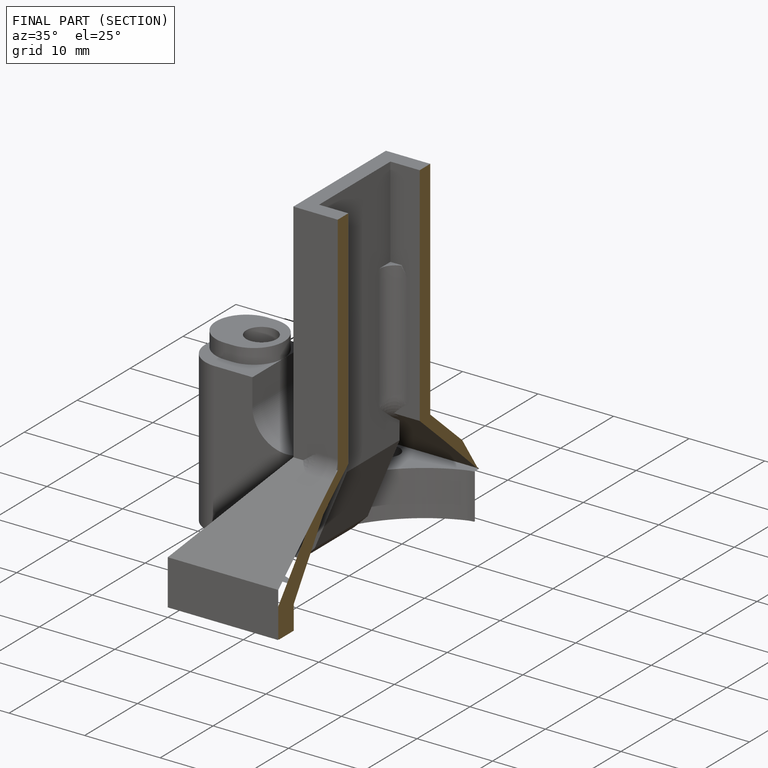
[diagram: finished part — half-section view (interior)]
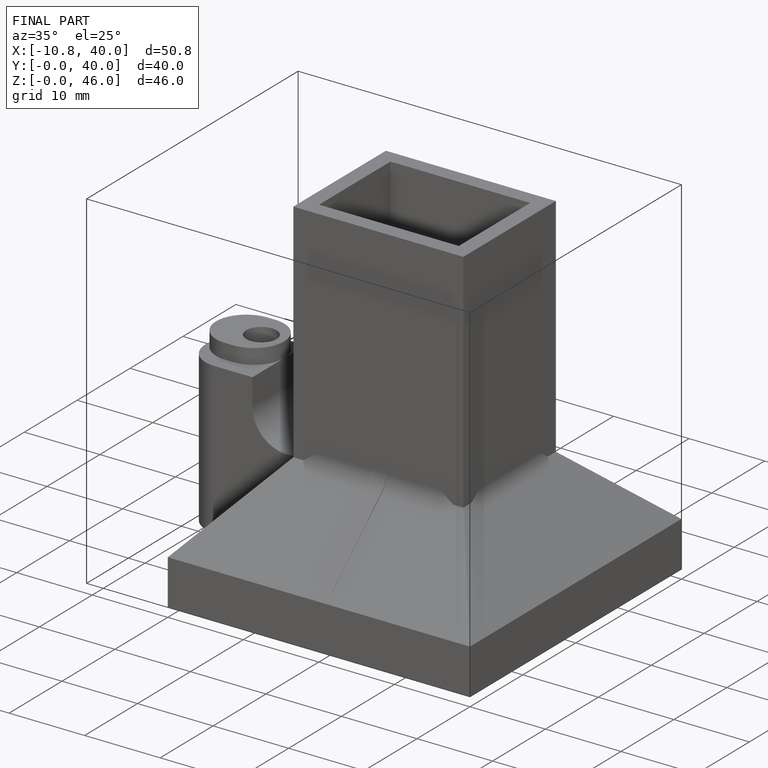
[diagram: finished part — iso view with bounding-box wireframe]
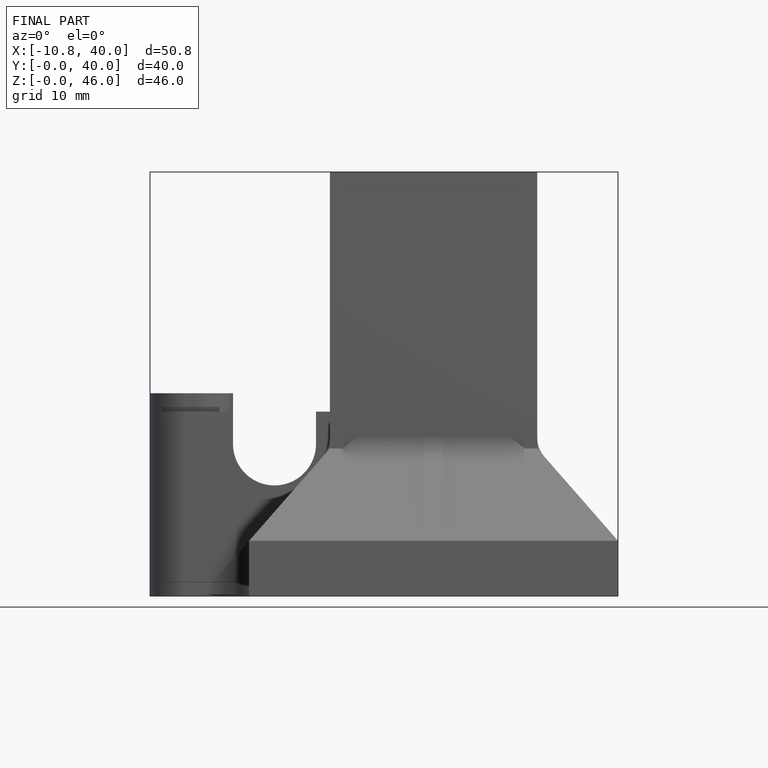
[diagram: finished part — front view with bounding-box wireframe]
